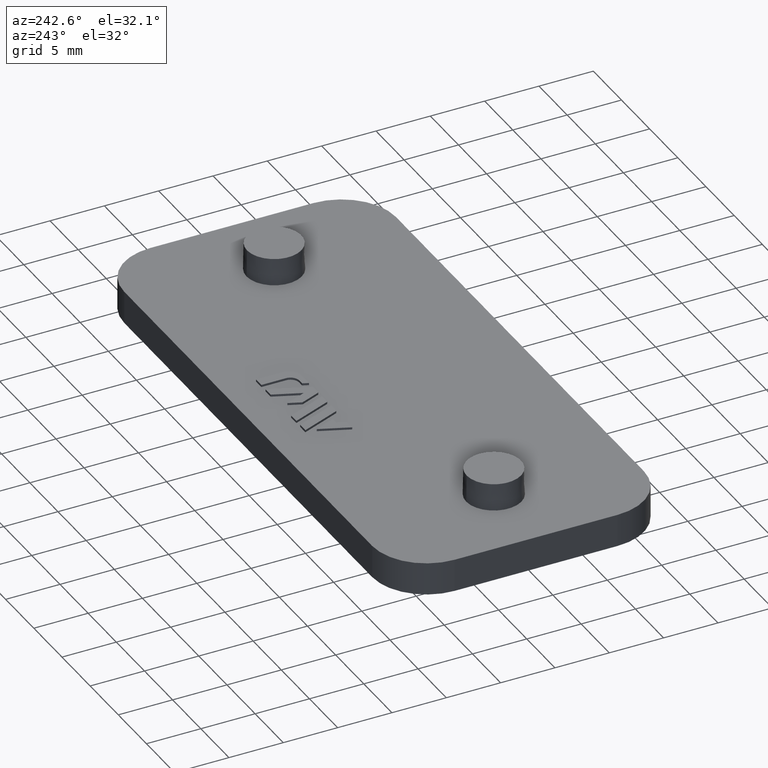
[diagram: clean part render]
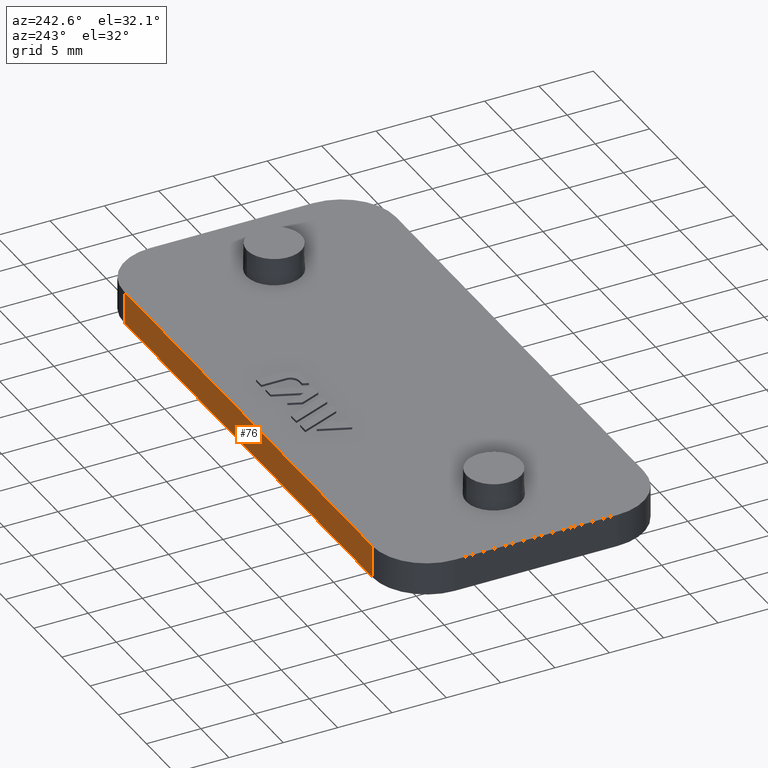
[diagram: same view with one face highlighted and labeled with its STEP entity id]
A machine part, auxiliary view. The second image highlights one B-rep face of the part: STEP entity #76.
In plain terms, the highlighted planar face has unit normal (-0, -1, 0).
Its self-contained STEP definition (entity closure, byte-faithful):
#76 = ADVANCED_FACE( '', ( #146 ), #147, .F. );
#146 = FACE_OUTER_BOUND( '', #279, .T. );
#147 = PLANE( '', #280 );
#279 = EDGE_LOOP( '', ( #444, #445, #446, #447 ) );
#280 = AXIS2_PLACEMENT_3D( '', #448, #449, #450 );
#444 = ORIENTED_EDGE( '', *, *, #894, .T. );
#445 = ORIENTED_EDGE( '', *, *, #920, .T. );
#446 = ORIENTED_EDGE( '', *, *, #921, .F. );
#447 = ORIENTED_EDGE( '', *, *, #922, .F. );
#448 = CARTESIAN_POINT( '', ( -39.4999999999999, 12.5000000000000, -1.46431667789534E-014 ) );
#449 = DIRECTION( '', ( -3.94430452610506E-031, -1.00000000000000, 6.12303176911189E-017 ) );
#450 = DIRECTION( '', ( -1.00000000000000, 3.94430452610506E-031, -2.41511019203931E-047 ) );
#894 = EDGE_CURVE( '', #1055, #1052, #1056, .T. );
#920 = EDGE_CURVE( '', #1052, #1106, #1107, .T. );
#921 = EDGE_CURVE( '', #1108, #1106, #1109, .T. );
#922 = EDGE_CURVE( '', #1055, #1108, #1110, .T. );
#1052 = VERTEX_POINT( '', #1311 );
#1055 = VERTEX_POINT( '', #1314 );
#1056 = LINE( '', #1315, #1316 );
#1106 = VERTEX_POINT( '', #1384 );
#1107 = LINE( '', #1385, #1386 );
#1108 = VERTEX_POINT( '', #1387 );
#1109 = LINE( '', #1388, #1389 );
#1110 = LINE( '', #1390, #1391 );
#1311 = CARTESIAN_POINT( '', ( 22.0000000000000, 12.5000000000000, 2.99999999999999 ) );
#1314 = CARTESIAN_POINT( '', ( -22.0000000000000, 12.4999999999999, 2.99999999999999 ) );
#1315 = CARTESIAN_POINT( '', ( -39.4999999999999, 12.5000000000000, 2.99999999999999 ) );
#1316 = VECTOR( '', #1672, 1000.00000000000 );
#1384 = CARTESIAN_POINT( '', ( 22.0000000000000, 12.5000000000000, -1.46431667789534E-014 ) );
#1385 = CARTESIAN_POINT( '', ( 22.0000000000000, 12.5000000000000, 70.5952235755202 ) );
#1386 = VECTOR( '', #1712, 1000.00000000000 );
#1387 = CARTESIAN_POINT( '', ( -22.0000000000000, 12.4999999999999, -1.46431667789534E-014 ) );
#1388 = CARTESIAN_POINT( '', ( -39.4999999999999, 12.5000000000000, -1.46431667789534E-014 ) );
#1389 = VECTOR( '', #1713, 1000.00000000000 );
#1390 = CARTESIAN_POINT( '', ( -22.0000000000000, 12.4999999999999, 83.8283656310797 ) );
#1391 = VECTOR( '', #1714, 1000.00000000000 );
#1672 = DIRECTION( '', ( 1.00000000000000, -3.94430452610506E-031, 2.41511019203931E-047 ) );
#1712 = DIRECTION( '', ( 1.60751816480226E-016, -1.81794180051289E-016, -1.00000000000000 ) );
#1713 = DIRECTION( '', ( 1.00000000000000, -3.94430452610506E-031, 2.41511019203931E-047 ) );
#1714 = DIRECTION( '', ( 1.60751816480226E-016, -1.81794180051289E-016, -1.00000000000000 ) );